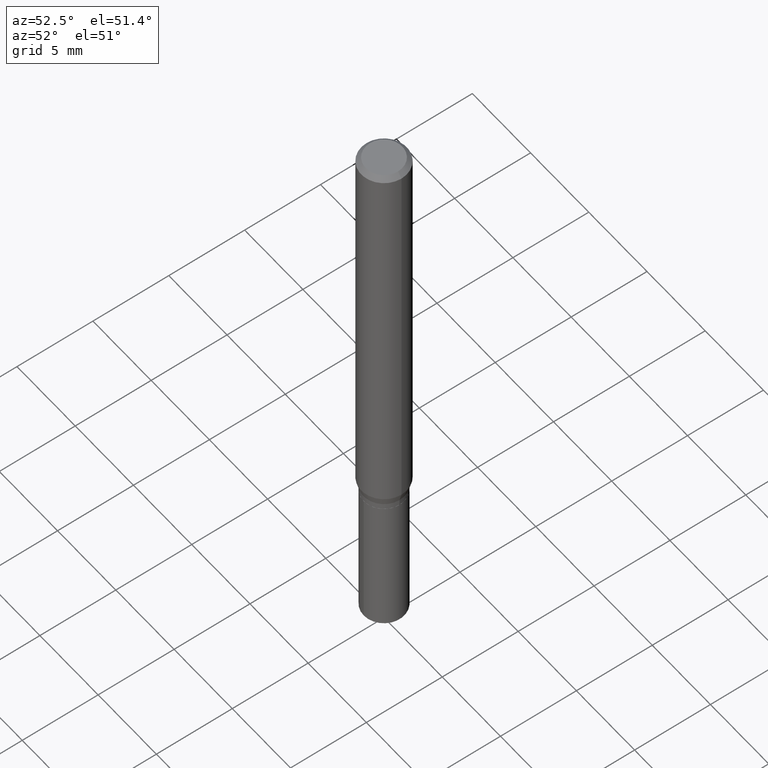
[diagram: clean part render]
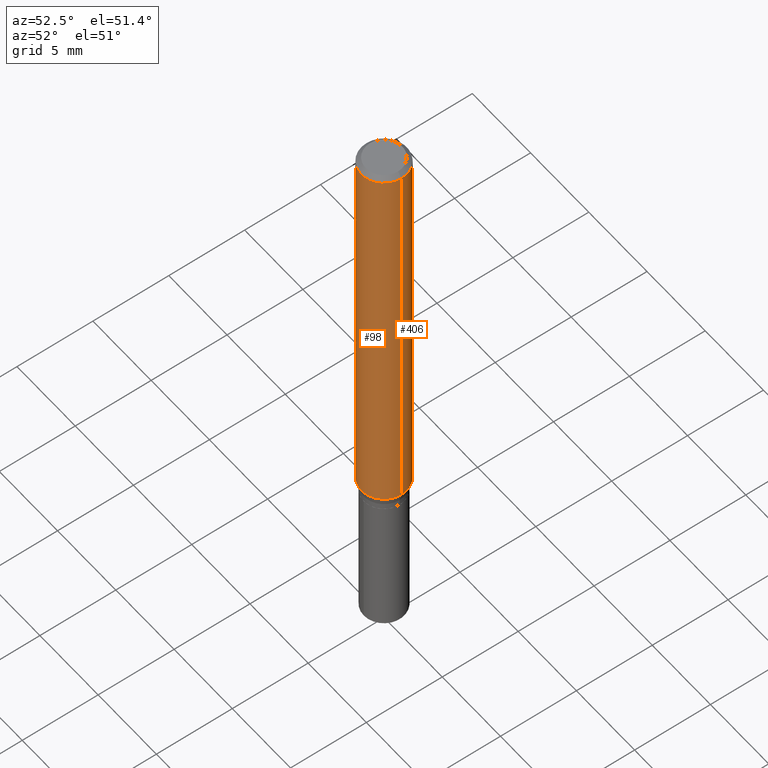
[diagram: same view with one multi-face feature highlighted, each face labeled with its STEP entity id]
A machine part, auxiliary view. The highlighted faces form ONE feature: a constant-radius fillet chain: 2 tangent blend faces with common blend radius 1.4999 mm. The faces share edges in the B-rep.
Their STEP definitions:
[1] entity #406 (Cylinder):
#4 = CARTESIAN_POINT ( 'NONE',  ( 2.578604211317355052E-29, -3.681563412833531563E-15, -1.054441669750801669 ) ) ;
#14 = DIRECTION ( 'NONE',  ( -2.445468806185136877E-29, 3.491481338843145188E-15, 1.000000000000000000 ) ) ;
#49 = CARTESIAN_POINT ( 'NONE',  ( 2.888098660104664204E-31, -4.123439461173780263E-17, -0.01181000000000007218 ) ) ;
#50 = DIRECTION ( 'NONE',  ( 1.000000000000000000, -6.982962677686266711E-15, 0.000000000000000000 ) ) ;
#65 = DIRECTION ( 'NONE',  ( -2.445468806185136597E-29, 3.491481338843145583E-15, 1.000000000000000000 ) ) ;
#87 = ORIENTED_EDGE ( 'NONE', *, *, #281, .F. ) ;
#101 = CYLINDRICAL_SURFACE ( 'NONE', #349, 0.05905000000000006771 ) ;
#102 = CIRCLE ( 'NONE', #372, 0.05905000000000013016 ) ;
#124 = EDGE_CURVE ( 'NONE', #184, #295, #102, .T. ) ;
#144 = CARTESIAN_POINT ( 'NONE',  ( -0.05905000000000006771, 4.195754854663396409E-16, -2.904631170795525045E-30 ) ) ;
#149 = ORIENTED_EDGE ( 'NONE', *, *, #124, .T. ) ;
#168 = CARTESIAN_POINT ( 'NONE',  ( 0.05904999999999999832, -4.535783407291118600E-16, -0.01181000000000007218 ) ) ;
#173 = VECTOR ( 'NONE', #14, 39.37007874015748143 ) ;
#174 = DIRECTION ( 'NONE',  ( -2.445468806185136597E-29, 3.491481338843145583E-15, 1.000000000000000000 ) ) ;
#184 = VERTEX_POINT ( 'NONE', #345 ) ;
#206 = VECTOR ( 'NONE', #221, 39.37007874015748143 ) ;
#221 = DIRECTION ( 'NONE',  ( -2.445468806185136877E-29, 3.491481338843145188E-15, 1.000000000000000000 ) ) ;
#224 = FACE_OUTER_BOUND ( 'NONE', #323, .T. ) ;
#243 = CARTESIAN_POINT ( 'NONE',  ( 0.05905000000000006771, -4.123439461173745257E-16, 2.879382386107503723E-30 ) ) ;
#245 = LINE ( 'NONE', #243, #173 ) ;
#252 = CARTESIAN_POINT ( 'NONE',  ( -0.05904999999999999832, -1.441823418256294167E-15, -0.01181000000000007218 ) ) ;
#268 = DIRECTION ( 'NONE',  ( 1.000000000000000000, -6.982962677686265133E-15, 0.000000000000000000 ) ) ;
#277 = ORIENTED_EDGE ( 'NONE', *, *, #443, .T. ) ;
#281 = EDGE_CURVE ( 'NONE', #331, #411, #301, .T. ) ;
#295 = VERTEX_POINT ( 'NONE', #473 ) ;
#301 = CIRCLE ( 'NONE', #407, 0.05904999999999999832 ) ;
#323 = EDGE_LOOP ( 'NONE', ( #149, #277, #87, #431 ) ) ;
#330 = EDGE_CURVE ( 'NONE', #184, #331, #245, .T. ) ;
#331 = VERTEX_POINT ( 'NONE', #168 ) ;
#345 = CARTESIAN_POINT ( 'NONE',  ( 0.05905000000000013016, -4.093907358950906483E-15, -1.054441669750801669 ) ) ;
#349 = AXIS2_PLACEMENT_3D ( 'NONE', #481, #65, #484 ) ;
#372 = AXIS2_PLACEMENT_3D ( 'NONE', #4, #385, #268 ) ;
#385 = DIRECTION ( 'NONE',  ( -2.445468806185136597E-29, 3.491481338843145583E-15, 1.000000000000000000 ) ) ;
#401 = LINE ( 'NONE', #144, #206 ) ;
#406 = ADVANCED_FACE ( 'NONE', ( #224 ), #101, .T. ) ;
#407 = AXIS2_PLACEMENT_3D ( 'NONE', #49, #174, #50 ) ;
#411 = VERTEX_POINT ( 'NONE', #252 ) ;
#431 = ORIENTED_EDGE ( 'NONE', *, *, #330, .F. ) ;
#443 = EDGE_CURVE ( 'NONE', #295, #411, #401, .T. ) ;
#473 = CARTESIAN_POINT ( 'NONE',  ( -0.05905000000000013016, -3.261987927367191281E-15, -1.054441669750801669 ) ) ;
#481 = CARTESIAN_POINT ( 'NONE',  ( 0.000000000000000000, 0.000000000000000000, 0.000000000000000000 ) ) ;
#484 = DIRECTION ( 'NONE',  ( 1.000000000000000000, -6.982962677686266711E-15, 4.876176775795936353E-29 ) ) ;
[2] entity #98 (Cylinder):
#14 = DIRECTION ( 'NONE',  ( -2.445468806185136877E-29, 3.491481338843145188E-15, 1.000000000000000000 ) ) ;
#35 = DIRECTION ( 'NONE',  ( 1.000000000000000000, -6.982962677686265133E-15, 0.000000000000000000 ) ) ;
#38 = CARTESIAN_POINT ( 'NONE',  ( 0.000000000000000000, 0.000000000000000000, 0.000000000000000000 ) ) ;
#44 = DIRECTION ( 'NONE',  ( 1.000000000000000000, -6.982962677686266711E-15, 4.876176775795936353E-29 ) ) ;
#51 = EDGE_CURVE ( 'NONE', #295, #184, #454, .T. ) ;
#78 = AXIS2_PLACEMENT_3D ( 'NONE', #305, #337, #35 ) ;
#98 = ADVANCED_FACE ( 'NONE', ( #455 ), #235, .T. ) ;
#105 = EDGE_CURVE ( 'NONE', #411, #331, #396, .T. ) ;
#133 = ORIENTED_EDGE ( 'NONE', *, *, #443, .F. ) ;
#144 = CARTESIAN_POINT ( 'NONE',  ( -0.05905000000000006771, 4.195754854663396409E-16, -2.904631170795525045E-30 ) ) ;
#168 = CARTESIAN_POINT ( 'NONE',  ( 0.05904999999999999832, -4.535783407291118600E-16, -0.01181000000000007218 ) ) ;
#173 = VECTOR ( 'NONE', #14, 39.37007874015748143 ) ;
#184 = VERTEX_POINT ( 'NONE', #345 ) ;
#206 = VECTOR ( 'NONE', #221, 39.37007874015748143 ) ;
#221 = DIRECTION ( 'NONE',  ( -2.445468806185136877E-29, 3.491481338843145188E-15, 1.000000000000000000 ) ) ;
#231 = DIRECTION ( 'NONE',  ( -2.445468806185136597E-29, 3.491481338843145583E-15, 1.000000000000000000 ) ) ;
#235 = CYLINDRICAL_SURFACE ( 'NONE', #332, 0.05905000000000006771 ) ;
#243 = CARTESIAN_POINT ( 'NONE',  ( 0.05905000000000006771, -4.123439461173745257E-16, 2.879382386107503723E-30 ) ) ;
#245 = LINE ( 'NONE', #243, #173 ) ;
#252 = CARTESIAN_POINT ( 'NONE',  ( -0.05904999999999999832, -1.441823418256294167E-15, -0.01181000000000007218 ) ) ;
#253 = ORIENTED_EDGE ( 'NONE', *, *, #105, .F. ) ;
#261 = EDGE_LOOP ( 'NONE', ( #133, #444, #408, #253 ) ) ;
#295 = VERTEX_POINT ( 'NONE', #473 ) ;
#305 = CARTESIAN_POINT ( 'NONE',  ( 2.578604211317355052E-29, -3.681563412833531563E-15, -1.054441669750801669 ) ) ;
#330 = EDGE_CURVE ( 'NONE', #184, #331, #245, .T. ) ;
#331 = VERTEX_POINT ( 'NONE', #168 ) ;
#332 = AXIS2_PLACEMENT_3D ( 'NONE', #38, #418, #44 ) ;
#337 = DIRECTION ( 'NONE',  ( -2.445468806185136597E-29, 3.491481338843145583E-15, 1.000000000000000000 ) ) ;
#341 = CARTESIAN_POINT ( 'NONE',  ( 2.888098660104664204E-31, -4.123439461173780263E-17, -0.01181000000000007218 ) ) ;
#345 = CARTESIAN_POINT ( 'NONE',  ( 0.05905000000000013016, -4.093907358950906483E-15, -1.054441669750801669 ) ) ;
#378 = DIRECTION ( 'NONE',  ( 1.000000000000000000, -6.982962677686266711E-15, 0.000000000000000000 ) ) ;
#396 = CIRCLE ( 'NONE', #414, 0.05904999999999999832 ) ;
#401 = LINE ( 'NONE', #144, #206 ) ;
#408 = ORIENTED_EDGE ( 'NONE', *, *, #330, .T. ) ;
#411 = VERTEX_POINT ( 'NONE', #252 ) ;
#414 = AXIS2_PLACEMENT_3D ( 'NONE', #341, #231, #378 ) ;
#418 = DIRECTION ( 'NONE',  ( -2.445468806185136597E-29, 3.491481338843145583E-15, 1.000000000000000000 ) ) ;
#443 = EDGE_CURVE ( 'NONE', #295, #411, #401, .T. ) ;
#444 = ORIENTED_EDGE ( 'NONE', *, *, #51, .T. ) ;
#454 = CIRCLE ( 'NONE', #78, 0.05905000000000013016 ) ;
#455 = FACE_OUTER_BOUND ( 'NONE', #261, .T. ) ;
#473 = CARTESIAN_POINT ( 'NONE',  ( -0.05905000000000013016, -3.261987927367191281E-15, -1.054441669750801669 ) ) ;